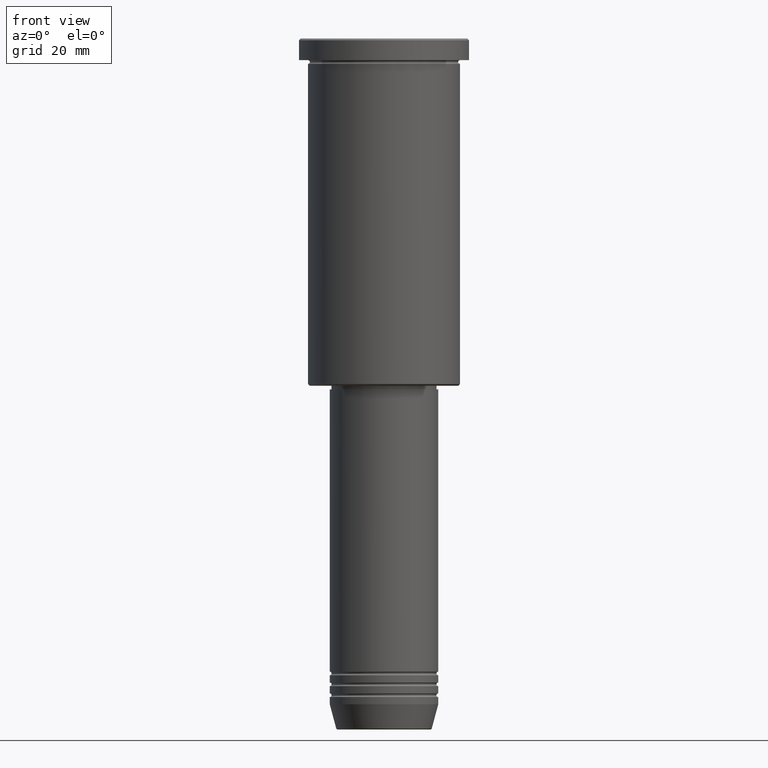
[diagram: clean part render]
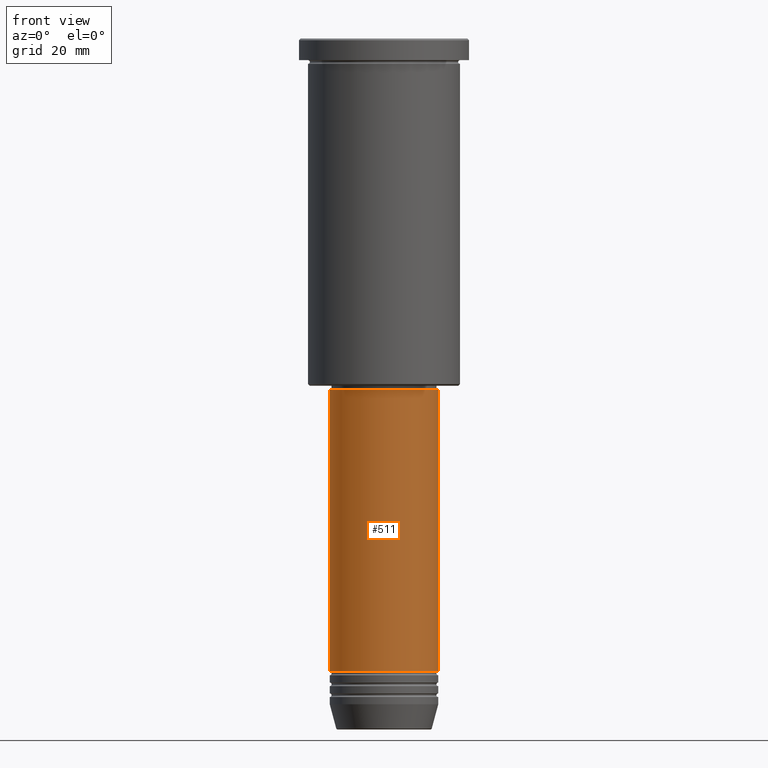
[diagram: same view with one face highlighted and labeled with its STEP entity id]
A machine part, front view. The second image highlights one B-rep face of the part: STEP entity #511.
In plain terms, the highlighted cylindrical surface (partial cylindrical patch) has radius 15 mm, axis along (-0, -0, 1).
Its self-contained STEP definition (entity closure, byte-faithful):
#16 = AXIS2_PLACEMENT_3D ( 'NONE', #43, #498, #1127 ) ;
#17 = VECTOR ( 'NONE', #1027, 1000.000000000000000 ) ;
#25 = FACE_OUTER_BOUND ( 'NONE', #411, .T. ) ;
#32 = AXIS2_PLACEMENT_3D ( 'NONE', #991, #537, #185 ) ;
#43 = CARTESIAN_POINT ( 'NONE',  ( 0.000000000000000000, 0.000000000000000000, 0.000000000000000000 ) ) ;
#88 = CARTESIAN_POINT ( 'NONE',  ( -15.00000000000000000, 1.836970198721029589E-15, 0.000000000000000000 ) ) ;
#105 = CARTESIAN_POINT ( 'NONE',  ( 15.00000000000000000, 0.000000000000000000, 0.000000000000000000 ) ) ;
#185 = DIRECTION ( 'NONE',  ( 1.000000000000000000, 0.000000000000000000, 0.000000000000000000 ) ) ;
#215 = LINE ( 'NONE', #105, #17 ) ;
#216 = CARTESIAN_POINT ( 'NONE',  ( 15.00000000000000000, 0.000000000000000000, -97.00000000000002842 ) ) ;
#219 = VERTEX_POINT ( 'NONE', #236 ) ;
#236 = CARTESIAN_POINT ( 'NONE',  ( -15.00000000000000000, 1.836970198721029589E-15, -97.00000000000002842 ) ) ;
#266 = DIRECTION ( 'NONE',  ( -0.000000000000000000, -0.000000000000000000, 1.000000000000000000 ) ) ;
#291 = ORIENTED_EDGE ( 'NONE', *, *, #640, .T. ) ;
#303 = VERTEX_POINT ( 'NONE', #694 ) ;
#319 = ORIENTED_EDGE ( 'NONE', *, *, #770, .T. ) ;
#333 = AXIS2_PLACEMENT_3D ( 'NONE', #999, #1064, #551 ) ;
#409 = VERTEX_POINT ( 'NONE', #216 ) ;
#411 = EDGE_LOOP ( 'NONE', ( #598, #291, #319, #497 ) ) ;
#450 = CIRCLE ( 'NONE', #32, 15.00000000000000000 ) ;
#477 = CYLINDRICAL_SURFACE ( 'NONE', #16, 15.00000000000000000 ) ;
#494 = CARTESIAN_POINT ( 'NONE',  ( -15.00000000000000000, 1.836970198721029589E-15, -175.0000000000000000 ) ) ;
#497 = ORIENTED_EDGE ( 'NONE', *, *, #696, .F. ) ;
#498 = DIRECTION ( 'NONE',  ( -0.000000000000000000, -0.000000000000000000, 1.000000000000000000 ) ) ;
#511 = ADVANCED_FACE ( 'NONE', ( #25 ), #477, .T. ) ;
#537 = DIRECTION ( 'NONE',  ( -0.000000000000000000, -0.000000000000000000, 1.000000000000000000 ) ) ;
#551 = DIRECTION ( 'NONE',  ( 1.000000000000000000, 0.000000000000000000, 0.000000000000000000 ) ) ;
#598 = ORIENTED_EDGE ( 'NONE', *, *, #994, .F. ) ;
#640 = EDGE_CURVE ( 'NONE', #934, #303, #450, .T. ) ;
#644 = VECTOR ( 'NONE', #266, 1000.000000000000000 ) ;
#694 = CARTESIAN_POINT ( 'NONE',  ( 15.00000000000000000, 0.000000000000000000, -175.0000000000000000 ) ) ;
#696 = EDGE_CURVE ( 'NONE', #219, #409, #894, .T. ) ;
#770 = EDGE_CURVE ( 'NONE', #303, #409, #215, .T. ) ;
#823 = LINE ( 'NONE', #88, #644 ) ;
#894 = CIRCLE ( 'NONE', #333, 15.00000000000000000 ) ;
#934 = VERTEX_POINT ( 'NONE', #494 ) ;
#991 = CARTESIAN_POINT ( 'NONE',  ( 0.000000000000000000, 0.000000000000000000, -175.0000000000000000 ) ) ;
#994 = EDGE_CURVE ( 'NONE', #934, #219, #823, .T. ) ;
#999 = CARTESIAN_POINT ( 'NONE',  ( 0.000000000000000000, 0.000000000000000000, -97.00000000000002842 ) ) ;
#1027 = DIRECTION ( 'NONE',  ( -0.000000000000000000, -0.000000000000000000, 1.000000000000000000 ) ) ;
#1064 = DIRECTION ( 'NONE',  ( -0.000000000000000000, -0.000000000000000000, 1.000000000000000000 ) ) ;
#1127 = DIRECTION ( 'NONE',  ( 1.000000000000000000, 0.000000000000000000, 0.000000000000000000 ) ) ;